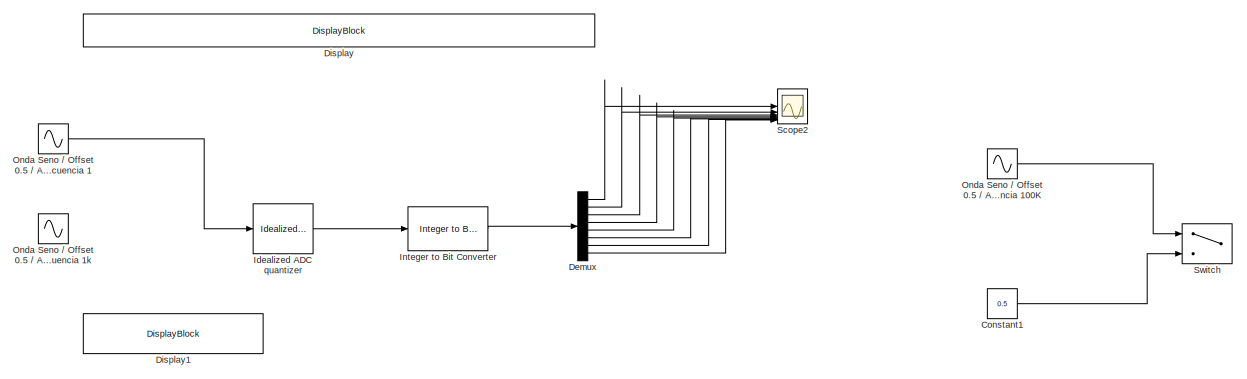
[diagram: root canvas - part 1/2, full width, top band]
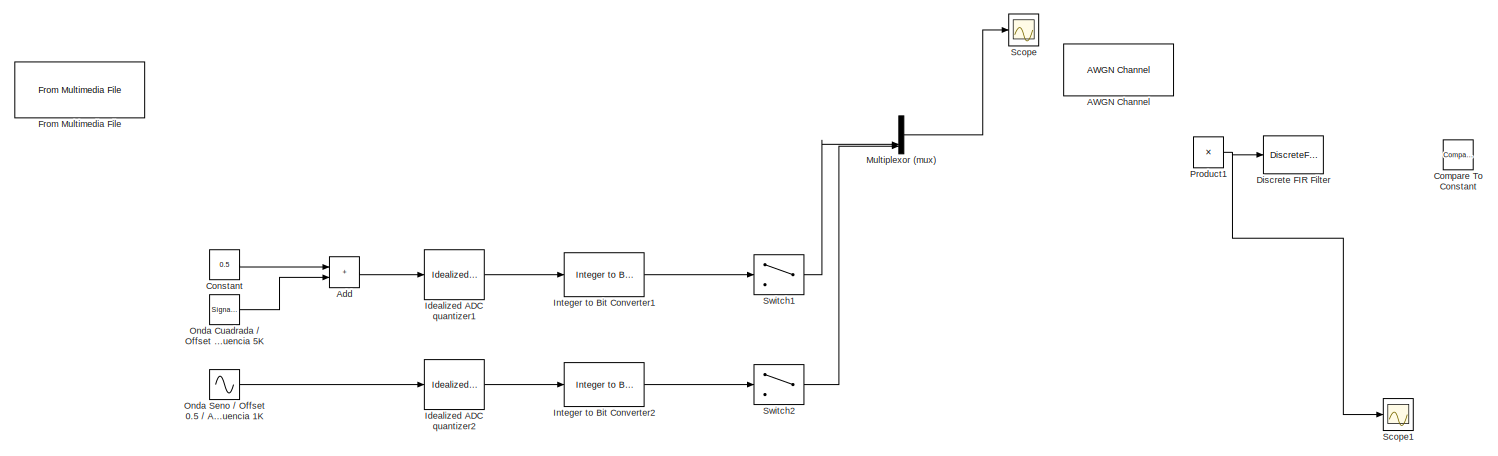
[diagram: root canvas - part 2/2, full width, bottom band]
MODEL slx_362cc60f0c6c
KIND model
CONFIG AbsTol = auto
CONFIG EnableMultiTasking = off
CONFIG FixedStep = auto
CONFIG MaxStep = auto
CONFIG MinStep = auto
CONFIG RelTol = 1e-3
CONFIG SampleTimeConstraint = Unconstrained
CONFIG SolverName = VariableStepAuto
CONFIG StartTime = 0.0
CONFIG StopTime = 10
BLOCK [Reference] AWGN Channel  REF=commchan3/AWGN
Channel
  SourceBlock = commchan3/AWGN\nChannel
  SourceType = AWGN Channel
BLOCK [Sum] Add
  IconShape = rectangular
BLOCK [Reference] Compare To Constant  REF=simulink/Logic and Bit
Operations/Compare
To Constant
  SourceBlock = simulink/Logic and Bit\nOperations/Compare\nTo Constant
  SourceType = Compare To Constant
BLOCK [Constant] Constant
  Value = 0.5
BLOCK [Constant] Constant1
  Value = 0.5
BLOCK [Demux] Demux
  Outputs = 8
BLOCK [DiscreteFir] Discrete FIR Filter
  CloseFcn = dspblkCoreblockFVToolHelper(gcbh,'close');
  CopyFcn = dspblkCoreblockFVToolHelper(gcbh,'copy');
  DeleteFcn = dspblkCoreblockFVToolHelper(gcbh,'close');
  InputPortMap = u0
  LoadFcn = dspblkCoreblockFVToolHelper(gcbh,'load');
  ModelCloseFcn = dspblkCoreblockFVToolHelper(gcbh,'close');
  OutputPortMap = o0
  PostSaveFcn = dspblkCoreblockFVToolHelper(gcbh,'postsave');
  PreSaveFcn = dspblkCoreblockFVToolHelper(gcbh,'presave');
BLOCK [DisplayBlock] Display
  LabelPosition = Hide
  Layout = Fill available space
  Transparency = 1
BLOCK [DisplayBlock] Display1
  LabelPosition = Hide
  Transparency = 1
BLOCK [Reference] From Multimedia File  REF=dspvision/From Multimedia File
  LibrarySourceBlock = audiosources/From Multimedia File
  SourceBlock = dspvision/From Multimedia File
  SourceType = From Multimedia File
BLOCK [Reference] Idealized ADC quantizer  REF=simulink_extras/Additional
Discrete/Idealized ADC quantizer
  AttributesFormatString = (settings: %<NumberOfConverterBits>-bit converter\nVmin: %<Vmin>, Vmax: %<Vmax>)
  SourceBlock = simulink_extras/Additional\nDiscrete/Idealized ADC quantizer
  SourceType = IdealADC
BLOCK [Reference] Idealized ADC quantizer1  REF=simulink_extras/Additional
Discrete/Idealized ADC quantizer
  AttributesFormatString = (settings: %<NumberOfConverterBits>-bit converter\nVmin: %<Vmin>, Vmax: %<Vmax>)
  SourceBlock = simulink_extras/Additional\nDiscrete/Idealized ADC quantizer
  SourceType = IdealADC
BLOCK [Reference] Idealized ADC quantizer2  REF=simulink_extras/Additional
Discrete/Idealized ADC quantizer
  AttributesFormatString = (settings: %<NumberOfConverterBits>-bit converter\nVmin: %<Vmin>, Vmax: %<Vmax>)
  SourceBlock = simulink_extras/Additional\nDiscrete/Idealized ADC quantizer
  SourceType = IdealADC
BLOCK [Reference] Integer to Bit Converter  REF=simulink/Logic and Bit
Operations/Integer to Bit
Converter
  SourceBlock = simulink/Logic and Bit\nOperations/Integer to Bit\nConverter
  SourceType = Integer to Bit Converter
BLOCK [Reference] Integer to Bit Converter1  REF=simulink/Logic and Bit
Operations/Integer to Bit
Converter
  SourceBlock = simulink/Logic and Bit\nOperations/Integer to Bit\nConverter
  SourceType = Integer to Bit Converter
BLOCK [Reference] Integer to Bit Converter2  REF=simulink/Logic and Bit
Operations/Integer to Bit
Converter
  SourceBlock = simulink/Logic and Bit\nOperations/Integer to Bit\nConverter
  SourceType = Integer to Bit Converter
BLOCK [Mux] Multiplexor (mux)
  DisplayOption = signals
BLOCK [SignalGenerator] Onda Cuadrada // Offset 0.5 // Amplitud 0.5 // Frecuencia 5K
  Amplitude = 0.5
  Frequency = 5000
  WaveForm = square
BLOCK [Sin] Onda Seno // Offset 0.5 // Amplitud 0.5 // Frecuencia 1
  Amplitude = 0.5
  Bias = 0.5
  Frequency = 6.28321853071
  SampleTime = 0
BLOCK [Sin] Onda Seno // Offset 0.5 // Amplitud 0.5 // Frecuencia 100K
  Amplitude = 0.5
  Bias = 0.5
  Frequency = 628318.5307
  SampleTime = 0
BLOCK [Sin] Onda Seno // Offset 0.5 // Amplitud 0.5 // Frecuencia 1K
  Amplitude = 0.5
  Bias = 0.5
  Frequency = 6283.185307
  SampleTime = 0
BLOCK [Sin] Onda Seno // Offset 0.5 // Amplitud 0.5 // Frecuencia 1k
  Amplitude = 0.5
  Bias = 0.5
  Frequency = 628321.853071
  SampleTime = 0
BLOCK [Product] Product1
BLOCK [Scope] Scope
  Floating = off
  NumInputPorts = 1
  ScopeSpecificationString = Simulink.scopes.TimeScopeBlockCfg('CurrentConfiguration', extmgr.ConfigurationSet(extmgr.Configuration('Core','General UI',true),extmgr.Configuration('Core','Source UI',true),extmgr.Configuration('Sources','WiredSimulink',true),extmgr.Configuration('Visuals','Time Domain',true,'SerializedDisplays',{struct('MinYLimReal','-0.0291','MaxYLimReal','1.00474','YLabelReal','','MinYLimMag','0.00000','MaxYL...<+1671ch>
BLOCK [Scope] Scope1
  Floating = off
  NumInputPorts = 1
  ScopeSpecificationString = Simulink.scopes.TimeScopeBlockCfg('CurrentConfiguration', extmgr.ConfigurationSet(extmgr.Configuration('Core','General UI',true),extmgr.Configuration('Core','Source UI',true),extmgr.Configuration('Sources','WiredSimulink',true,'DataLoggingVariableName','ScopeData1'),extmgr.Configuration('Visuals','Time Domain',true,'SerializedDisplays',{struct('MinYLimReal','-7.40496','MaxYLimReal','137.16802','YL...<+1590ch>
BLOCK [Scope] Scope2
  Floating = off
  NumInputPorts = 8
  ScopeSpecificationString = Simulink.scopes.TimeScopeBlockCfg('CurrentConfiguration', extmgr.ConfigurationSet(extmgr.Configuration('Core','General UI',true),extmgr.Configuration('Core','Source UI',true),extmgr.Configuration('Sources','WiredSimulink',true,'DataLoggingVariableName','ScopeData1'),extmgr.Configuration('Visuals','Time Domain',true,'SerializedDisplays',{struct('MinYLimReal','0.00000','MaxYLimReal','1.10121','YLabe...<+7167ch>
BLOCK [Switch] Switch
  Criteria = u2 > Threshold
  InputSameDT = off
  SaturateOnIntegerOverflow = off
  Threshold = 0.5
BLOCK [Switch] Switch1
  Criteria = u2 > Threshold
  InputSameDT = off
  SaturateOnIntegerOverflow = off
  Threshold = 0.5
BLOCK [Switch] Switch2
  Criteria = u2 > Threshold
  InputSameDT = off
  SaturateOnIntegerOverflow = off
  Threshold = 0.5
LINE Add:1 -> Idealized ADC quantizer1:1
LINE Constant1:1 -> Switch:3
LINE Constant:1 -> Add:1
LINE Demux:1 -> Scope2:1
LINE Demux:2 -> Scope2:2
LINE Demux:3 -> Scope2:3
LINE Demux:4 -> Scope2:4
LINE Demux:5 -> Scope2:5
LINE Demux:6 -> Scope2:6
LINE Demux:7 -> Scope2:7
LINE Demux:8 -> Scope2:8
LINE Idealized ADC quantizer1:1 -> Integer to Bit Converter1:1
LINE Idealized ADC quantizer2:1 -> Integer to Bit Converter2:1
LINE Idealized ADC quantizer:1 -> Integer to Bit Converter:1
LINE Integer to Bit Converter1:1 -> Switch1:2
LINE Integer to Bit Converter2:1 -> Switch2:2
LINE Integer to Bit Converter:1 -> Demux:1
LINE Multiplexor (mux):1 -> Scope:1
LINE Onda Cuadrada // Offset 0.5 // Amplitud 0.5 // Frecuencia 5K:1 -> Add:2
LINE Onda Seno // Offset 0.5 // Amplitud 0.5 // Frecuencia 100K:1 -> Switch:1
LINE Onda Seno // Offset 0.5 // Amplitud 0.5 // Frecuencia 1:1 -> Idealized ADC quantizer:1
LINE Onda Seno // Offset 0.5 // Amplitud 0.5 // Frecuencia 1K:1 -> Idealized ADC quantizer2:1
NET Product1:1 -> Discrete FIR Filter:1, Scope1:1
LINE Switch1:1 -> Multiplexor (mux):3
LINE Switch2:1 -> Multiplexor (mux):4
note: NET lines group one-source signal fan-out (src -> all destinations, sorted); 1:1 wires keep LINE
